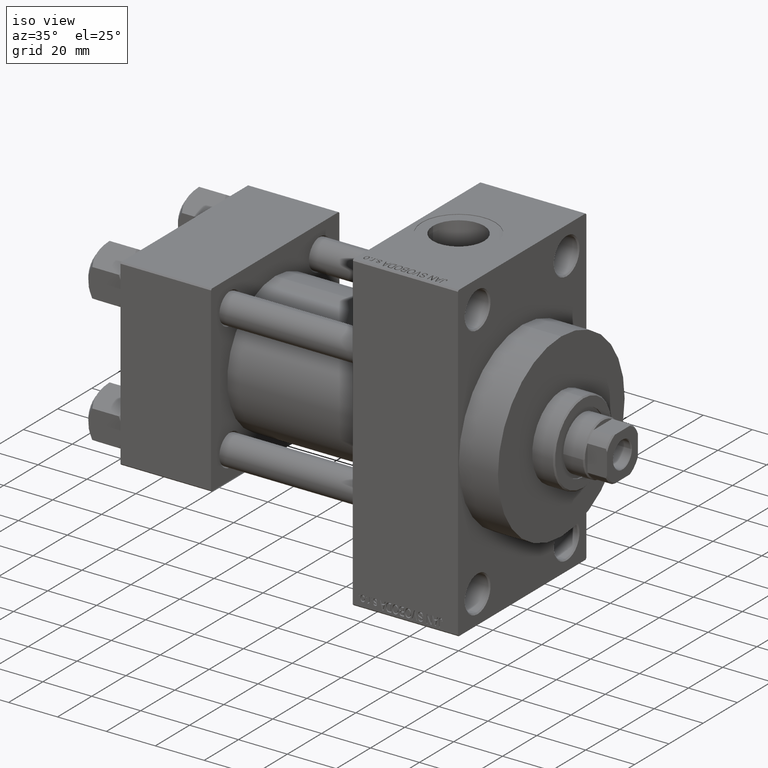
[diagram: clean part render]
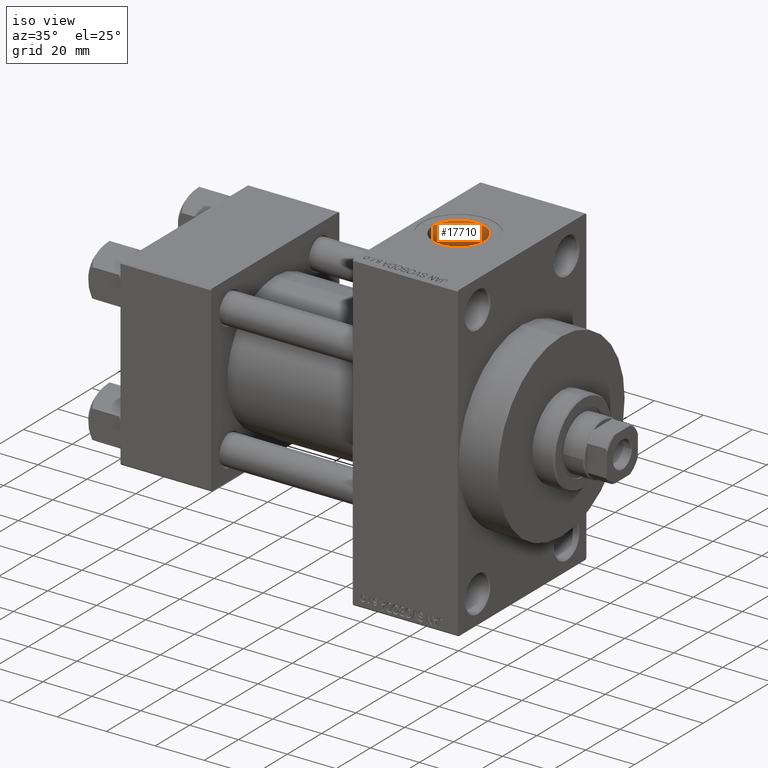
[diagram: same view with one face highlighted and labeled with its STEP entity id]
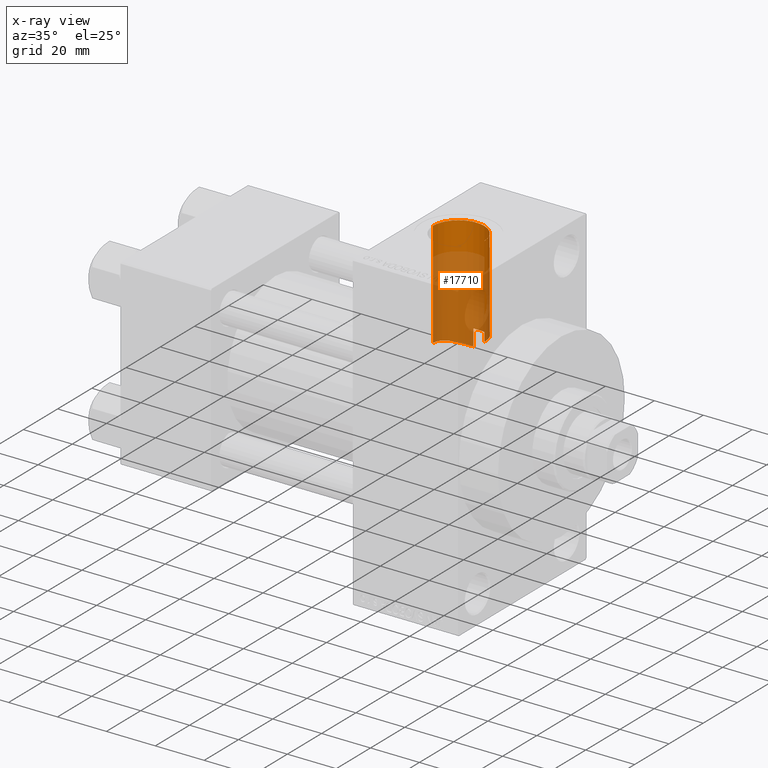
[diagram: x-ray of the same camera — body ghosted, the highlighted face saturated]
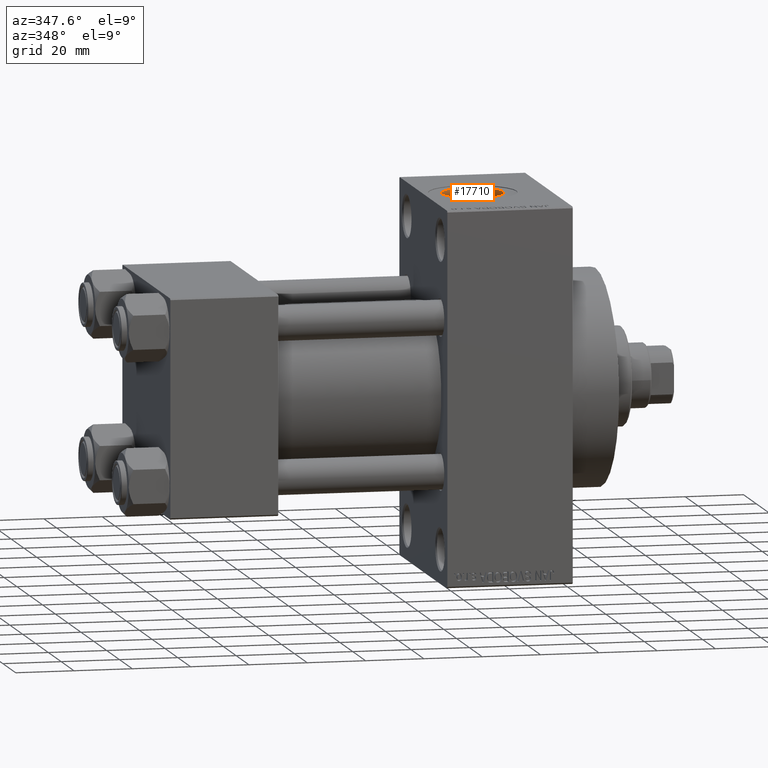
[diagram: same view with one face highlighted and labeled with its STEP entity id]
A machine part, iso view. The second image highlights one B-rep face of the part: STEP entity #17710.
The next image is the same camera in x-ray: the body ghosted, the highlighted face saturated — about 72% of this face is hidden behind the body in this view.
A second angle (auxiliary view) of the same face is appended — the face is thin or edge-on in the first view.
In plain terms, the highlighted cylindrical surface (edge-blend (fillet) strip) has radius 10.48 mm, axis along (0, 0, -1).
Its self-contained STEP definition (entity closure, byte-faithful):
#1065 = CARTESIAN_POINT ( 'NONE',  ( 105.0528299167331312, 7.871036018965745562, 18.93334913321979585 ) ) ;
#1528 = CARTESIAN_POINT ( 'NONE',  ( 122.4800000000000040, -1.055894908382857498E-14, 63.79999999999996874 ) ) ;
#1542 = CARTESIAN_POINT ( 'NONE',  ( 104.5999354725380783, 7.447256858224746701, 19.10589413119057767 ) ) ;
#1923 = LINE ( 'NONE', #31979, #42277 ) ;
#2343 = EDGE_LOOP ( 'NONE', ( #26053, #19689, #28774, #31992, #15701, #2967 ) ) ;
#2967 = ORIENTED_EDGE ( 'NONE', *, *, #44887, .T. ) ;
#3347 = CARTESIAN_POINT ( 'NONE',  ( 109.4692022797542137, 10.17493502766898494, 17.79682229850193664 ) ) ;
#3469 = DIRECTION ( 'NONE',  ( -0.000000000000000000, -0.000000000000000000, -1.000000000000000000 ) ) ;
#3628 = CARTESIAN_POINT ( 'NONE',  ( 110.7400000000000375, 10.40398000767013365, 24.37226292324945831 ) ) ;
#3870 = CARTESIAN_POINT ( 'NONE',  ( 121.8350634734960209, 3.638478613961682040, 26.25141056013274010 ) ) ;
#4113 = DIRECTION ( 'NONE',  ( 0.000000000000000000, 0.000000000000000000, -1.000000000000000000 ) ) ;
#4175 = DIRECTION ( 'NONE',  ( 1.000000000000000000, 0.000000000000000000, 0.000000000000000000 ) ) ;
#4548 = EDGE_CURVE ( 'NONE', #4550, #6880, #11020, .T. ) ;
#4550 = VERTEX_POINT ( 'NONE', #7670 ) ;
#5811 = VECTOR ( 'NONE', #4113, 1000.000000000000000 ) ;
#6293 = VERTEX_POINT ( 'NONE', #1528 ) ;
#6880 = VERTEX_POINT ( 'NONE', #25534 ) ;
#6965 = CARTESIAN_POINT ( 'NONE',  ( 114.4441749543285738, 10.19789382658400179, 24.45934298840090193 ) ) ;
#7441 = CARTESIAN_POINT ( 'NONE',  ( 101.5199999999999960, -1.184237892933500047E-14, 86.79999999999995453 ) ) ;
#7670 = CARTESIAN_POINT ( 'NONE',  ( 101.5199999999999960, -1.184237892933500047E-14, 63.79999999999996874 ) ) ;
#8451 = CARTESIAN_POINT ( 'NONE',  ( 101.5199999999999960, 2.510525899711658857E-15, 20.50000000000000000 ) ) ;
#8633 = CARTESIAN_POINT ( 'NONE',  ( 122.4800000000000040, -1.055894908382857498E-14, 86.79999999999995453 ) ) ;
#9913 = CARTESIAN_POINT ( 'NONE',  ( 112.0000000000000000, -1.184237892933500047E-14, 63.79999999999996874 ) ) ;
#10076 = CARTESIAN_POINT ( 'NONE',  ( 116.5354866893690655, 9.476643251961673897, 24.75065044043747164 ) ) ;
#10537 = CARTESIAN_POINT ( 'NONE',  ( 122.4596852673074494, 0.7513843442591080501, 26.49194720587043506 ) ) ;
#10772 = CARTESIAN_POINT ( 'NONE',  ( 121.6992295974814340, 3.986558870987728209, 26.20065640115691608 ) ) ;
#11015 = CARTESIAN_POINT ( 'NONE',  ( 112.2299651273087733, 10.50378173186091857, 24.32953270370887466 ) ) ;
#11020 = LINE ( 'NONE', #7441, #19636 ) ;
#12030 = CARTESIAN_POINT ( 'NONE',  ( 106.8412927899010612, 9.127810295380946570, 18.35647067852579184 ) ) ;
#12270 = CARTESIAN_POINT ( 'NONE',  ( 107.6756880578672479, 9.566914324853396323, 18.13372263328941969 ) ) ;
#12740 = CARTESIAN_POINT ( 'NONE',  ( 102.8986382944031988, 5.205176082402801718, 19.83010537438763521 ) ) ;
#14127 = CARTESIAN_POINT ( 'NONE',  ( 117.8214836787066560, 8.745726648652290436, 25.01826792439339897 ) ) ;
#14364 = CARTESIAN_POINT ( 'NONE',  ( 122.4800000000000040, 0.3734547879239727419, 26.49999999999999645 ) ) ;
#14369 = DIRECTION ( 'NONE',  ( 0.000000000000000000, 0.000000000000000000, -1.000000000000000000 ) ) ;
#15701 = ORIENTED_EDGE ( 'NONE', *, *, #16867, .F. ) ;
#16867 = EDGE_CURVE ( 'NONE', #17825, #22675, #1923, .T. ) ;
#17492 = CARTESIAN_POINT ( 'NONE',  ( 111.4867779838282615, 10.49442042171647493, 24.33365591073748035 ) ) ;
#17710 = ADVANCED_FACE ( 'NONE', ( #39687 ), #40389, .F. ) ;
#17719 = CARTESIAN_POINT ( 'NONE',  ( 122.4800000000001603, 1.369086318735094867E-14, 26.50000000000006750 ) ) ;
#17825 = VERTEX_POINT ( 'NONE', #19575 ) ;
#17907 = CARTESIAN_POINT ( 'NONE',  ( 110.4203714346557348, 10.36527059146240148, 17.68652548756300291 ) ) ;
#17946 = CARTESIAN_POINT ( 'NONE',  ( 122.3797757294332484, 1.493268271475387765, 26.46049876817950164 ) ) ;
#18173 = DIRECTION ( 'NONE',  ( 0.000000000000000000, 0.000000000000000000, -1.000000000000000000 ) ) ;
#18183 = CARTESIAN_POINT ( 'NONE',  ( 113.7090337631726413, 10.34650826617284558, 24.39684948145013621 ) ) ;
#18640 = DIRECTION ( 'NONE',  ( -1.000000000000000000, 0.000000000000000000, 0.000000000000000000 ) ) ;
#19184 = CARTESIAN_POINT ( 'NONE',  ( 103.7748447540609931, 6.501949221870917839, 19.44336272688398992 ) ) ;
#19427 = CARTESIAN_POINT ( 'NONE',  ( 102.4658413712517557, 4.362386374640967013, 20.03258463067211892 ) ) ;
#19575 = CARTESIAN_POINT ( 'NONE',  ( 110.7400000000000375, 10.40398000767013365, 24.37226292324945831 ) ) ;
#19636 = VECTOR ( 'NONE', #14369, 1000.000000000000000 ) ;
#19689 = ORIENTED_EDGE ( 'NONE', *, *, #25977, .F. ) ;
#21531 = CARTESIAN_POINT ( 'NONE',  ( 115.8597611319121512, 9.771269649766484378, 24.63391780956525778 ) ) ;
#22675 = VERTEX_POINT ( 'NONE', #40010 ) ;
#22900 = CARTESIAN_POINT ( 'NONE',  ( 122.4800000000001603, 1.369086318735094867E-14, 26.50000000000006750 ) ) ;
#23018 = CARTESIAN_POINT ( 'NONE',  ( 102.3367565711945701, 4.068703859687935243, 20.09447083081811769 ) ) ;
#23726 = CARTESIAN_POINT ( 'NONE',  ( 103.4011913467666233, 5.999084284177357951, 19.60435374003196785 ) ) ;
#25110 = CARTESIAN_POINT ( 'NONE',  ( 112.0000000000000000, -1.184237892933500047E-14, 86.79999999999995453 ) ) ;
#25123 = CARTESIAN_POINT ( 'NONE',  ( 122.1639830582153223, 2.580729652396743568, 26.37652280659619919 ) ) ;
#25534 = CARTESIAN_POINT ( 'NONE',  ( 101.5199999999999960, 2.510525899711658857E-15, 20.50000000000000000 ) ) ;
#25977 = EDGE_CURVE ( 'NONE', #4550, #6293, #37578, .T. ) ;
#26053 = ORIENTED_EDGE ( 'NONE', *, *, #34478, .F. ) ;
#26065 = LINE ( 'NONE', #8633, #5811 ) ;
#27078 = CARTESIAN_POINT ( 'NONE',  ( 101.8172526941615104, 2.560154069184302994, 20.34938652026761119 ) ) ;
#28774 = ORIENTED_EDGE ( 'NONE', *, *, #4548, .T. ) ;
#28928 = CARTESIAN_POINT ( 'NONE',  ( 114.8037318579564072, 10.10473920047652996, 24.49813564323964954 ) ) ;
#29167 = CARTESIAN_POINT ( 'NONE',  ( 118.4137155183433237, 8.320227012065174677, 25.16506772452921936 ) ) ;
#30173 = CARTESIAN_POINT ( 'NONE',  ( 105.7867860278862366, 8.445286684367433239, 18.68076181990201334 ) ) ;
#30659 = CARTESIAN_POINT ( 'NONE',  ( 101.9916734818969957, 3.173751558613250090, 20.26192827245122885 ) ) ;
#30896 = CARTESIAN_POINT ( 'NONE',  ( 101.5199999999999960, 0.6432653997690287451, 20.50000000000000000 ) ) ;
#31979 = CARTESIAN_POINT ( 'NONE',  ( 110.7400000000000375, 10.40398000767013365, 86.79999999999995453 ) ) ;
#31992 = ORIENTED_EDGE ( 'NONE', *, *, #37990, .T. ) ;
#32052 = CARTESIAN_POINT ( 'NONE',  ( 119.5039792871088196, 7.352021432312235483, 25.46477158686608533 ) ) ;
#32279 = CARTESIAN_POINT ( 'NONE',  ( 121.2405592406192341, 4.999168989607013280, 26.03318073817900213 ) ) ;
#32468 = CARTESIAN_POINT ( 'NONE',  ( 110.7400000000000375, 10.40398000767013365, 17.66372554134603234 ) ) ;
#34478 = EDGE_CURVE ( 'NONE', #6293, #34859, #26065, .T. ) ;
#34859 = VERTEX_POINT ( 'NONE', #22900 ) ;
#35640 = CARTESIAN_POINT ( 'NONE',  ( 113.3395490093498239, 10.40067243543118636, 24.37370326712205326 ) ) ;
#35836 = CARTESIAN_POINT ( 'NONE',  ( 110.0991158311732221, 10.31120164165120023, 17.71821964665046778 ) ) ;
#37578 = CIRCLE ( 'NONE', #46747, 10.48000000000000398 ) ;
#37682 = AXIS2_PLACEMENT_3D ( 'NONE', #25110, #18173, #18640 ) ;
#37990 = EDGE_CURVE ( 'NONE', #6880, #22675, #41805, .T. ) ;
#38316 = CARTESIAN_POINT ( 'NONE',  ( 109.1609584177873273, 10.09308949919720533, 17.84352421155690394 ) ) ;
#39687 = FACE_OUTER_BOUND ( 'NONE', #2343, .T. ) ;
#40010 = CARTESIAN_POINT ( 'NONE',  ( 110.7400000000000375, 10.40398000767013365, 17.66372554134603234 ) ) ;
#40389 = CYLINDRICAL_SURFACE ( 'NONE', #37682, 10.48000000000000398 ) ;
#41419 = CARTESIAN_POINT ( 'NONE',  ( 102.7465031261292978, 4.929846979882105629, 19.90053945554344139 ) ) ;
#41805 = B_SPLINE_CURVE_WITH_KNOTS ( 'NONE', 3,
 ( #8451, #30896, #44514, #27078, #30659, #23018, #19427, #41419, #12740, #45471, #23726, #19184, #44999, #1542, #1065, #30173, #45237, #44745, #12030, #12270, #42131, #38316, #3347, #35836, #17907, #32468 ),
 .UNSPECIFIED., .F., .F.,
 ( 4, 2, 2, 2, 2, 2, 2, 2, 2, 2, 2, 2, 4 ),
 ( 0.03336594956818871721, 0.03529115265112772043, 0.03721635573406671671, 0.03817895727553621138, 0.03914155881700570605, 0.04010416035847520072, 0.04106676189994469539, 0.04299196498288371249, 0.04395456652435320716, 0.04491716806582270183, 0.04684237114876168423, 0.04780497269023117890, 0.04876757423170067357 ),
 .UNSPECIFIED. ) ;
#42131 = CARTESIAN_POINT ( 'NONE',  ( 108.2549261276042216, 9.808449044963712282, 18.00254357143011319 ) ) ;
#42277 = VECTOR ( 'NONE', #46316, 1000.000000000000000 ) ;
#42812 = CARTESIAN_POINT ( 'NONE',  ( 122.0669445693513495, 2.936601299046107449, 26.33916201839659621 ) ) ;
#43048 = CARTESIAN_POINT ( 'NONE',  ( 120.0047687462550954, 6.803400717438811363, 25.61891449644601337 ) ) ;
#43744 = CARTESIAN_POINT ( 'NONE',  ( 122.3203974186215106, 1.859062739166803757, 26.43718984002442340 ) ) ;
#44514 = CARTESIAN_POINT ( 'NONE',  ( 101.5808659713658244, 1.297835754585097590, 20.46869666010345767 ) ) ;
#44745 = CARTESIAN_POINT ( 'NONE',  ( 106.5676313420410679, 8.967626198694219397, 18.43549189657611009 ) ) ;
#44772 = B_SPLINE_CURVE_WITH_KNOTS ( 'NONE', 3,
 ( #3628, #17492, #11015, #35640, #18183, #6965, #28928, #21531, #10076, #14127, #29167, #32052, #43048, #46394, #32279, #10772, #3870, #42812, #25123, #43744, #17946, #10537, #14364, #17719 ),
 .UNSPECIFIED., .F., .F.,
 ( 4, 2, 2, 2, 2, 2, 2, 2, 2, 2, 2, 4 ),
 ( 0.000000000000000000, 0.002226462588988903889, 0.003339693883483335016, 0.004452925177977766144, 0.006679387766966586766, 0.008905850355955407388, 0.01113231294494422714, 0.01335877553393304516, 0.01447200682842746632, 0.01558523812292188573, 0.01669846941741630689, 0.01781170071191072457 ),
 .UNSPECIFIED. ) ;
#44887 = EDGE_CURVE ( 'NONE', #17825, #34859, #44772, .T. ) ;
#44999 = CARTESIAN_POINT ( 'NONE',  ( 103.9742710306879445, 6.746563713616611224, 19.35963802281104762 ) ) ;
#45237 = CARTESIAN_POINT ( 'NONE',  ( 106.0406083823525449, 8.626389767625555649, 18.59760954222976181 ) ) ;
#45471 = CARTESIAN_POINT ( 'NONE',  ( 103.2259820339099576, 5.739795438484815548, 19.68201426512246499 ) ) ;
#46316 = DIRECTION ( 'NONE',  ( 0.000000000000000000, 0.000000000000000000, -1.000000000000000000 ) ) ;
#46394 = CARTESIAN_POINT ( 'NONE',  ( 120.8701661937233069, 5.628741928601555422, 25.90236100434593780 ) ) ;
#46747 = AXIS2_PLACEMENT_3D ( 'NONE', #9913, #3469, #4175 ) ;